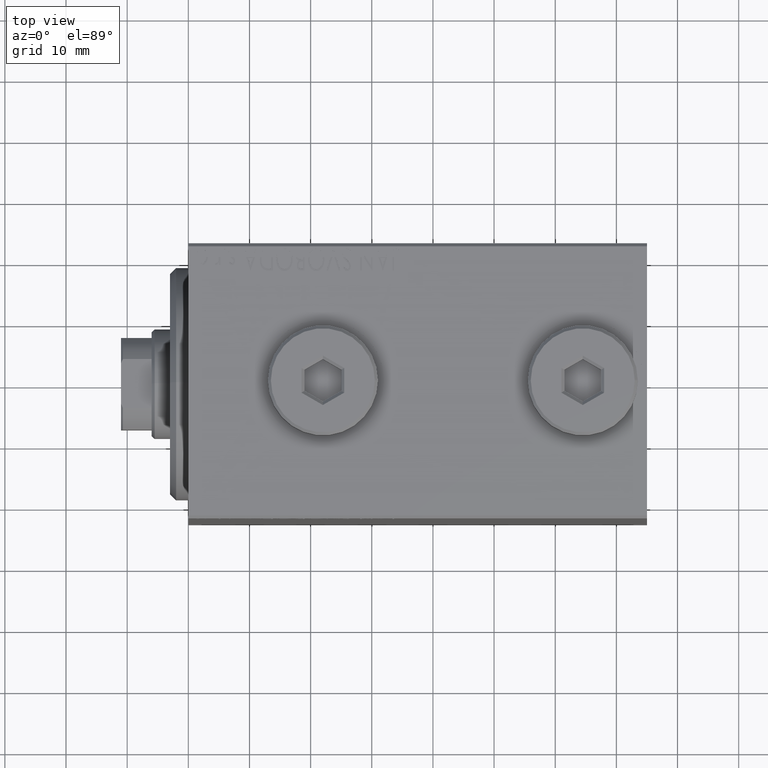
[diagram: clean part render]
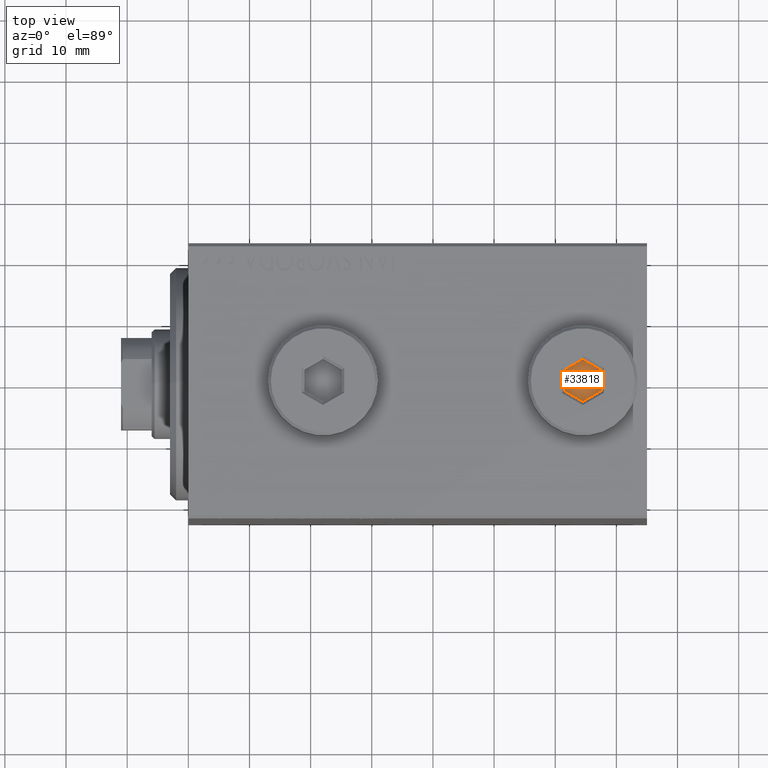
[diagram: same view with one face highlighted and labeled with its STEP entity id]
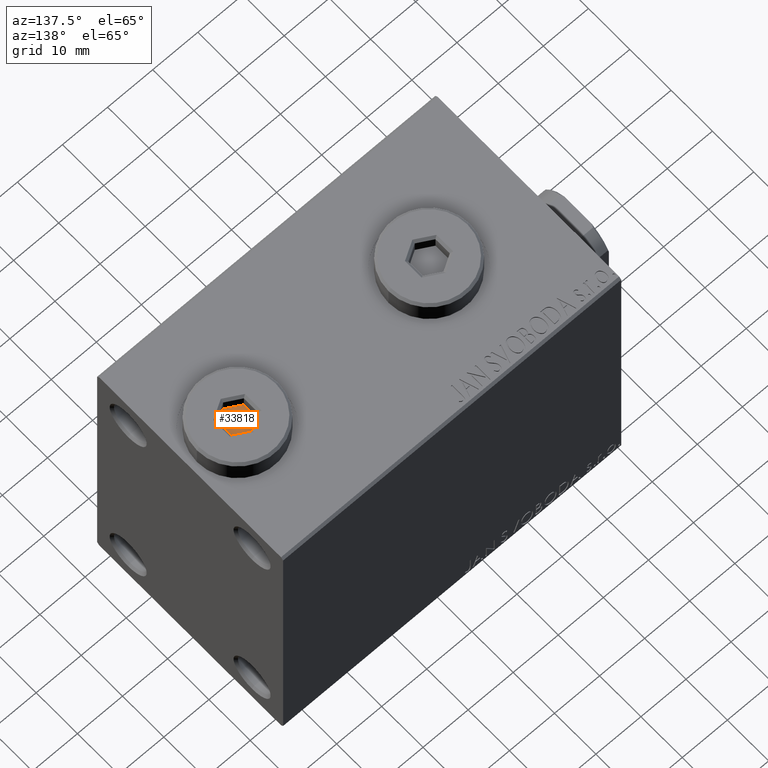
[diagram: same view with one face highlighted and labeled with its STEP entity id]
A machine part, top view. The second image highlights one B-rep face of the part: STEP entity #33818.
A second angle (auxiliary view) of the same face is appended — the face is thin or edge-on in the first view.
In plain terms, the highlighted planar face has unit normal (0, 0, 1).
Its self-contained STEP definition (entity closure, byte-faithful):
#545 = LINE ( 'NONE', #15514, #2964 ) ;
#2964 = VECTOR ( 'NONE', #39964, 1000.000000000000000 ) ;
#3249 = FACE_OUTER_BOUND ( 'NONE', #40864, .T. ) ;
#4603 = LINE ( 'NONE', #8049, #5682 ) ;
#5682 = VECTOR ( 'NONE', #18432, 1000.000000000000000 ) ;
#6091 = CARTESIAN_POINT ( 'NONE',  ( -3.000000000000000000, -1.732050807568877415, 2.000000000000000000 ) ) ;
#6273 = VERTEX_POINT ( 'NONE', #28014 ) ;
#6913 = DIRECTION ( 'NONE',  ( 1.000000000000000000, 0.000000000000000000, -0.000000000000000000 ) ) ;
#7745 = ORIENTED_EDGE ( 'NONE', *, *, #13093, .T. ) ;
#8049 = CARTESIAN_POINT ( 'NONE',  ( 3.000000000000000000, -1.732050807568878303, 2.000000000000000000 ) ) ;
#8655 = LINE ( 'NONE', #19050, #31326 ) ;
#9619 = VECTOR ( 'NONE', #20764, 1000.000000000000227 ) ;
#10191 = LINE ( 'NONE', #24243, #36086 ) ;
#10392 = AXIS2_PLACEMENT_3D ( 'NONE', #17298, #38515, #6913 ) ;
#10646 = DIRECTION ( 'NONE',  ( 0.000000000000000000, -1.000000000000000000, 0.000000000000000000 ) ) ;
#11088 = DIRECTION ( 'NONE',  ( -0.8660254037844387076, 0.4999999999999998335, 0.000000000000000000 ) ) ;
#13093 = EDGE_CURVE ( 'NONE', #13640, #40620, #8655, .T. ) ;
#13640 = VERTEX_POINT ( 'NONE', #6091 ) ;
#14290 = PLANE ( 'NONE',  #10392 ) ;
#14298 = CARTESIAN_POINT ( 'NONE',  ( 0.000000000000000000, 3.464101615137754386, 2.000000000000000000 ) ) ;
#15514 = CARTESIAN_POINT ( 'NONE',  ( -1.288750986297053243E-16, -3.464101615137754830, 2.000000000000000000 ) ) ;
#16301 = VERTEX_POINT ( 'NONE', #22750 ) ;
#17298 = CARTESIAN_POINT ( 'NONE',  ( 0.000000000000000000, 0.000000000000000000, 2.000000000000000000 ) ) ;
#17858 = CARTESIAN_POINT ( 'NONE',  ( 3.000000000000000000, -1.732050807568878303, 2.000000000000000000 ) ) ;
#18432 = DIRECTION ( 'NONE',  ( 0.000000000000000000, 1.000000000000000000, 0.000000000000000000 ) ) ;
#19050 = CARTESIAN_POINT ( 'NONE',  ( -3.000000000000000000, -1.732050807568877415, 2.000000000000000000 ) ) ;
#20602 = EDGE_CURVE ( 'NONE', #16301, #37607, #39216, .T. ) ;
#20764 = DIRECTION ( 'NONE',  ( -0.8660254037844387076, -0.4999999999999997780, 0.000000000000000000 ) ) ;
#21776 = EDGE_CURVE ( 'NONE', #26864, #16301, #4603, .T. ) ;
#22750 = CARTESIAN_POINT ( 'NONE',  ( 3.000000000000000000, 1.732050807568877859, 2.000000000000000000 ) ) ;
#23740 = ORIENTED_EDGE ( 'NONE', *, *, #34744, .T. ) ;
#23981 = LINE ( 'NONE', #14298, #9619 ) ;
#24243 = CARTESIAN_POINT ( 'NONE',  ( -3.000000000000000000, 1.732050807568878081, 2.000000000000000000 ) ) ;
#24435 = ORIENTED_EDGE ( 'NONE', *, *, #32280, .T. ) ;
#24762 = ORIENTED_EDGE ( 'NONE', *, *, #21776, .T. ) ;
#26174 = DIRECTION ( 'NONE',  ( 0.8660254037844385966, -0.4999999999999998890, 0.000000000000000000 ) ) ;
#26864 = VERTEX_POINT ( 'NONE', #17858 ) ;
#28014 = CARTESIAN_POINT ( 'NONE',  ( -3.000000000000000000, 1.732050807568878081, 2.000000000000000000 ) ) ;
#31326 = VECTOR ( 'NONE', #26174, 1000.000000000000227 ) ;
#32218 = VECTOR ( 'NONE', #11088, 1000.000000000000000 ) ;
#32280 = EDGE_CURVE ( 'NONE', #40620, #26864, #545, .T. ) ;
#32670 = EDGE_CURVE ( 'NONE', #6273, #13640, #10191, .T. ) ;
#33598 = CARTESIAN_POINT ( 'NONE',  ( 0.000000000000000000, 3.464101615137754386, 2.000000000000000000 ) ) ;
#33818 = ADVANCED_FACE ( 'NONE', ( #3249 ), #14290, .T. ) ;
#34018 = ORIENTED_EDGE ( 'NONE', *, *, #20602, .T. ) ;
#34744 = EDGE_CURVE ( 'NONE', #37607, #6273, #23981, .T. ) ;
#36086 = VECTOR ( 'NONE', #10646, 1000.000000000000000 ) ;
#37607 = VERTEX_POINT ( 'NONE', #33598 ) ;
#37912 = CARTESIAN_POINT ( 'NONE',  ( 3.000000000000000000, 1.732050807568877859, 2.000000000000000000 ) ) ;
#38515 = DIRECTION ( 'NONE',  ( 0.000000000000000000, 0.000000000000000000, 1.000000000000000000 ) ) ;
#39216 = LINE ( 'NONE', #37912, #32218 ) ;
#39964 = DIRECTION ( 'NONE',  ( 0.8660254037844387076, 0.4999999999999998335, 0.000000000000000000 ) ) ;
#40620 = VERTEX_POINT ( 'NONE', #42716 ) ;
#40864 = EDGE_LOOP ( 'NONE', ( #34018, #23740, #41783, #7745, #24435, #24762 ) ) ;
#41783 = ORIENTED_EDGE ( 'NONE', *, *, #32670, .T. ) ;
#42716 = CARTESIAN_POINT ( 'NONE',  ( -1.288750986297053243E-16, -3.464101615137754830, 2.000000000000000000 ) ) ;